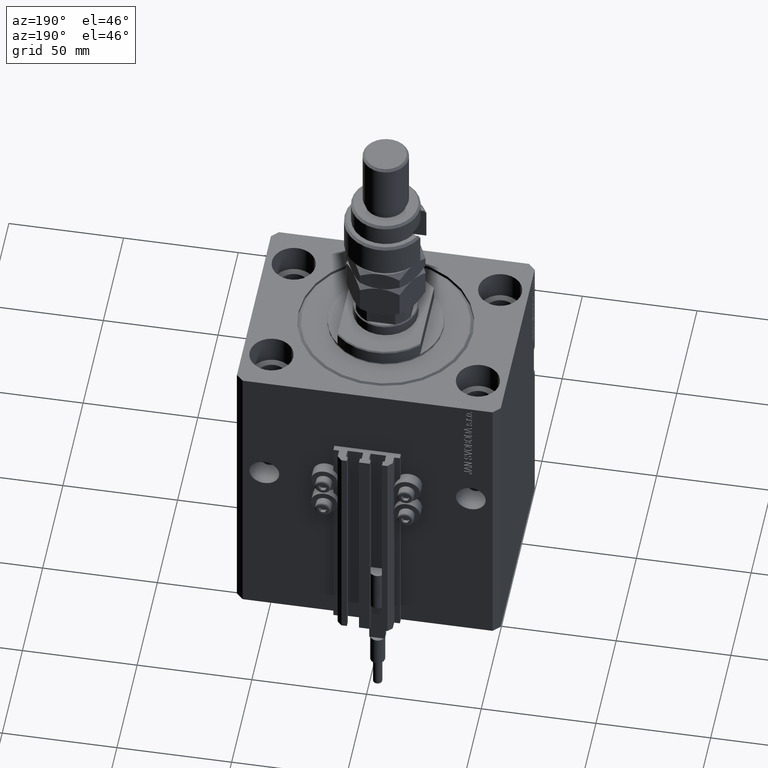
[diagram: clean part render]
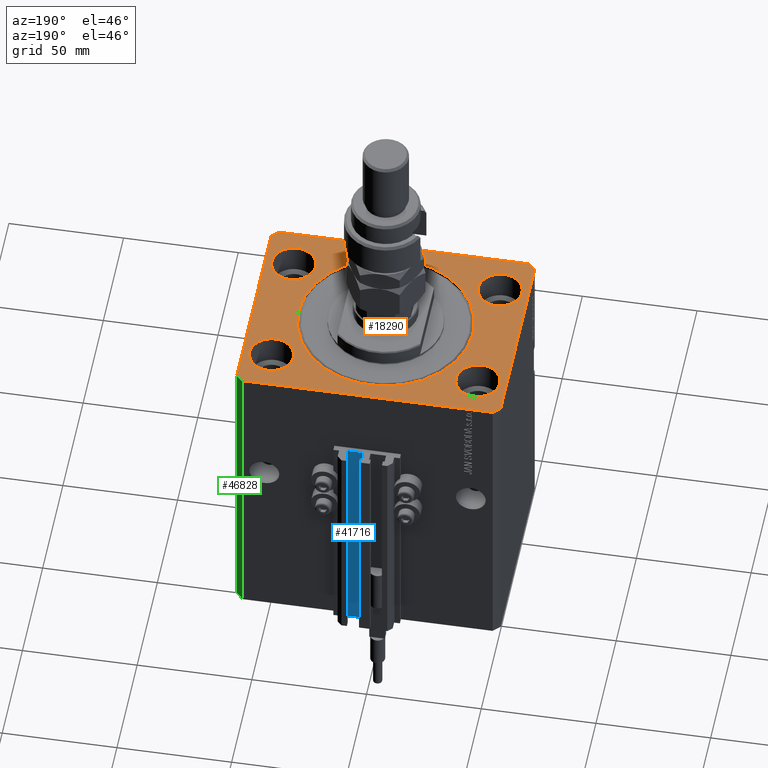
[diagram: same view with three faces highlighted in distinct colors, each labeled with its STEP entity id]
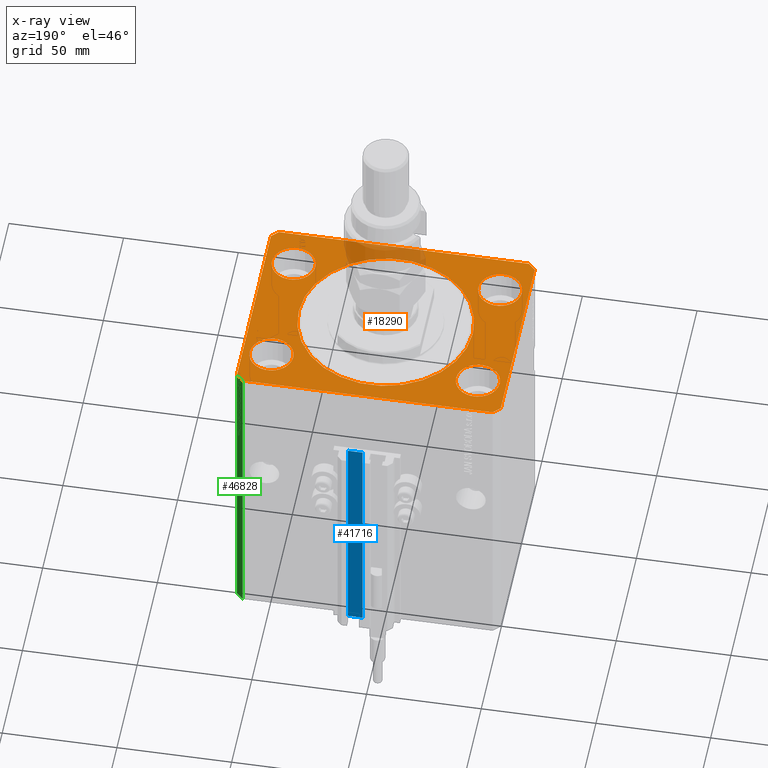
[diagram: x-ray of the same camera — body ghosted, the three highlighted faces saturated]
A machine part, auxiliary view with three faces highlighted in distinct colors.
The next image is the same camera in x-ray (body ghosted, the three faces saturated) — at least one of them is partly hidden behind the body in this view.
Their STEP definitions:

[orange] entity #18290 — the highlighted planar face has unit normal (0, 0, 1).
#83 = ORIENTED_EDGE ( 'NONE', *, *, #45579, .F. ) ;
#184 = EDGE_CURVE ( 'NONE', #30116, #21361, #6221, .T. ) ;
#811 = DIRECTION ( 'NONE',  ( 1.000000000000000000, 0.000000000000000000, 0.000000000000000000 ) ) ;
#1210 = CARTESIAN_POINT ( 'NONE',  ( -35.50000000000000000, 27.50000000000000355, 0.000000000000000000 ) ) ;
#1668 = LINE ( 'NONE', #33448, #16861 ) ;
#1735 = ORIENTED_EDGE ( 'NONE', *, *, #22554, .F. ) ;
#1888 = EDGE_LOOP ( 'NONE', ( #12918, #3303 ) ) ;
#2054 = VERTEX_POINT ( 'NONE', #19089 ) ;
#2514 = DIRECTION ( 'NONE',  ( -0.7071067811865376918, 0.7071067811865574537, 0.000000000000000000 ) ) ;
#2721 = CARTESIAN_POINT ( 'NONE',  ( 0.000000000000000000, 0.000000000000000000, 0.000000000000000000 ) ) ;
#2876 = VERTEX_POINT ( 'NONE', #50110 ) ;
#2987 = FACE_BOUND ( 'NONE', #1888, .T. ) ;
#3303 = ORIENTED_EDGE ( 'NONE', *, *, #25908, .F. ) ;
#3665 = AXIS2_PLACEMENT_3D ( 'NONE', #6005, #34600, #43303 ) ;
#3726 = EDGE_CURVE ( 'NONE', #45807, #2054, #19192, .T. ) ;
#4096 = DIRECTION ( 'NONE',  ( -2.478176394252581141E-16, -1.000000000000000000, 0.000000000000000000 ) ) ;
#4221 = CARTESIAN_POINT ( 'NONE',  ( -54.49999999999999289, 45.00000000000000000, 0.000000000000000000 ) ) ;
#4326 = VERTEX_POINT ( 'NONE', #37708 ) ;
#4799 = EDGE_CURVE ( 'NONE', #9020, #43027, #27580, .T. ) ;
#5177 = ORIENTED_EDGE ( 'NONE', *, *, #28275, .T. ) ;
#5676 = AXIS2_PLACEMENT_3D ( 'NONE', #47216, #43248, #26607 ) ;
#6005 = CARTESIAN_POINT ( 'NONE',  ( -45.00000000000000000, -27.49999999999999645, 0.000000000000000000 ) ) ;
#6221 = LINE ( 'NONE', #35065, #36826 ) ;
#6311 = EDGE_CURVE ( 'NONE', #49414, #2876, #35202, .T. ) ;
#6746 = CARTESIAN_POINT ( 'NONE',  ( -57.50000000000000711, -42.00000000000000711, 0.000000000000000000 ) ) ;
#6998 = ORIENTED_EDGE ( 'NONE', *, *, #43211, .T. ) ;
#7359 = EDGE_CURVE ( 'NONE', #22617, #24450, #21767, .T. ) ;
#7481 = DIRECTION ( 'NONE',  ( 0.000000000000000000, 0.000000000000000000, 1.000000000000000000 ) ) ;
#7608 = DIRECTION ( 'NONE',  ( 1.000000000000000000, 0.000000000000000000, 0.000000000000000000 ) ) ;
#7990 = CARTESIAN_POINT ( 'NONE',  ( -54.50000000000000000, -27.49999999999999645, 0.000000000000000000 ) ) ;
#8066 = CARTESIAN_POINT ( 'NONE',  ( -54.50000000000000711, -45.00000000000000000, 0.000000000000000000 ) ) ;
#8508 = DIRECTION ( 'NONE',  ( 0.000000000000000000, 0.000000000000000000, 1.000000000000000000 ) ) ;
#8703 = DIRECTION ( 'NONE',  ( 1.000000000000000000, 0.000000000000000000, 0.000000000000000000 ) ) ;
#8999 = CARTESIAN_POINT ( 'NONE',  ( 54.50000000000000711, -44.99999999999998579, 0.000000000000000000 ) ) ;
#9020 = VERTEX_POINT ( 'NONE', #25594 ) ;
#9616 = VECTOR ( 'NONE', #4096, 1000.000000000000000 ) ;
#10282 = ORIENTED_EDGE ( 'NONE', *, *, #19243, .T. ) ;
#10365 = AXIS2_PLACEMENT_3D ( 'NONE', #33771, #12867, #29027 ) ;
#10877 = CARTESIAN_POINT ( 'NONE',  ( -57.50000000000000711, -42.00000000000000711, 0.000000000000000000 ) ) ;
#11182 = FACE_BOUND ( 'NONE', #42138, .T. ) ;
#11315 = CARTESIAN_POINT ( 'NONE',  ( -45.00000000000000000, -27.49999999999999645, 0.000000000000000000 ) ) ;
#11336 = CARTESIAN_POINT ( 'NONE',  ( -54.50000000000000711, -45.00000000000000000, 0.000000000000000000 ) ) ;
#11446 = FACE_BOUND ( 'NONE', #13579, .T. ) ;
#11555 = ORIENTED_EDGE ( 'NONE', *, *, #22579, .T. ) ;
#12607 = ORIENTED_EDGE ( 'NONE', *, *, #37697, .T. ) ;
#12795 = AXIS2_PLACEMENT_3D ( 'NONE', #38583, #8508, #17959 ) ;
#12867 = DIRECTION ( 'NONE',  ( 0.000000000000000000, 0.000000000000000000, 1.000000000000000000 ) ) ;
#12918 = ORIENTED_EDGE ( 'NONE', *, *, #6311, .F. ) ;
#12930 = VERTEX_POINT ( 'NONE', #45316 ) ;
#13325 = AXIS2_PLACEMENT_3D ( 'NONE', #51375, #27061, #26536 ) ;
#13579 = EDGE_LOOP ( 'NONE', ( #83, #25432 ) ) ;
#14397 = CARTESIAN_POINT ( 'NONE',  ( 57.50000000000000711, -41.99999999999998579, 0.000000000000000000 ) ) ;
#14648 = CIRCLE ( 'NONE', #3665, 9.500000000000001776 ) ;
#15611 = CARTESIAN_POINT ( 'NONE',  ( -38.00000000000000000, 4.653657836759941941E-15, 0.000000000000000000 ) ) ;
#16283 = LINE ( 'NONE', #8066, #45289 ) ;
#16861 = VECTOR ( 'NONE', #33706, 1000.000000000000000 ) ;
#17304 = LINE ( 'NONE', #33450, #9616 ) ;
#17445 = CIRCLE ( 'NONE', #30090, 9.500000000000001776 ) ;
#17941 = AXIS2_PLACEMENT_3D ( 'NONE', #11315, #39104, #7608 ) ;
#17959 = DIRECTION ( 'NONE',  ( 1.000000000000000000, 0.000000000000000000, 0.000000000000000000 ) ) ;
#18282 = AXIS2_PLACEMENT_3D ( 'NONE', #49438, #41772, #8703 ) ;
#18290 = ADVANCED_FACE ( 'NONE', ( #11182, #40025, #43735, #2987, #11446, #19674 ), #35282, .T. ) ;
#19089 = CARTESIAN_POINT ( 'NONE',  ( 35.50000000000000000, -27.49999999999999645, 0.000000000000000000 ) ) ;
#19192 = CIRCLE ( 'NONE', #37758, 9.500000000000001776 ) ;
#19243 = EDGE_CURVE ( 'NONE', #47032, #30116, #40542, .T. ) ;
#19674 = FACE_OUTER_BOUND ( 'NONE', #39605, .T. ) ;
#20768 = VERTEX_POINT ( 'NONE', #11336 ) ;
#20851 = DIRECTION ( 'NONE',  ( -1.000000000000000000, -2.546383084002639322E-16, 0.000000000000000000 ) ) ;
#21361 = VERTEX_POINT ( 'NONE', #35504 ) ;
#21767 = CIRCLE ( 'NONE', #5676, 38.00000000000000000 ) ;
#22554 = EDGE_CURVE ( 'NONE', #2054, #45807, #50236, .T. ) ;
#22579 = EDGE_CURVE ( 'NONE', #42062, #12930, #40461, .T. ) ;
#22617 = VERTEX_POINT ( 'NONE', #15611 ) ;
#24288 = ORIENTED_EDGE ( 'NONE', *, *, #48935, .F. ) ;
#24450 = VERTEX_POINT ( 'NONE', #48822 ) ;
#24759 = DIRECTION ( 'NONE',  ( 1.000000000000000000, 1.273191542001326317E-16, 0.000000000000000000 ) ) ;
#25432 = ORIENTED_EDGE ( 'NONE', *, *, #7359, .F. ) ;
#25555 = VECTOR ( 'NONE', #20851, 1000.000000000000000 ) ;
#25594 = CARTESIAN_POINT ( 'NONE',  ( 35.50000000000000000, 27.50000000000001776, 0.000000000000000000 ) ) ;
#25908 = EDGE_CURVE ( 'NONE', #2876, #49414, #17445, .T. ) ;
#26048 = ORIENTED_EDGE ( 'NONE', *, *, #3726, .F. ) ;
#26427 = CARTESIAN_POINT ( 'NONE',  ( -54.49999999999999289, 45.00000000000000000, 0.000000000000000000 ) ) ;
#26441 = AXIS2_PLACEMENT_3D ( 'NONE', #2721, #7481, #43992 ) ;
#26536 = DIRECTION ( 'NONE',  ( 1.000000000000000000, 0.000000000000000000, 0.000000000000000000 ) ) ;
#26607 = DIRECTION ( 'NONE',  ( 1.000000000000000000, 0.000000000000000000, 0.000000000000000000 ) ) ;
#27061 = DIRECTION ( 'NONE',  ( 0.000000000000000000, 0.000000000000000000, 1.000000000000000000 ) ) ;
#27580 = CIRCLE ( 'NONE', #13325, 9.500000000000001776 ) ;
#28275 = EDGE_CURVE ( 'NONE', #20768, #35128, #16283, .T. ) ;
#28424 = CARTESIAN_POINT ( 'NONE',  ( 45.00000000000000000, -27.49999999999999645, 0.000000000000000000 ) ) ;
#28785 = LINE ( 'NONE', #44378, #25555 ) ;
#29027 = DIRECTION ( 'NONE',  ( 1.000000000000000000, 0.000000000000000000, 0.000000000000000000 ) ) ;
#30090 = AXIS2_PLACEMENT_3D ( 'NONE', #33100, #48186, #811 ) ;
#30116 = VERTEX_POINT ( 'NONE', #50685 ) ;
#30498 = ORIENTED_EDGE ( 'NONE', *, *, #184, .T. ) ;
#30916 = EDGE_LOOP ( 'NONE', ( #33778, #33886 ) ) ;
#32122 = VERTEX_POINT ( 'NONE', #7990 ) ;
#32416 = CARTESIAN_POINT ( 'NONE',  ( 54.50000000000000000, -27.49999999999999645, 0.000000000000000000 ) ) ;
#32442 = ORIENTED_EDGE ( 'NONE', *, *, #50537, .T. ) ;
#33100 = CARTESIAN_POINT ( 'NONE',  ( -45.00000000000000000, 27.50000000000000355, 0.000000000000000000 ) ) ;
#33209 = CIRCLE ( 'NONE', #10365, 38.00000000000000000 ) ;
#33407 = CARTESIAN_POINT ( 'NONE',  ( 57.50000000000000711, -41.99999999999998579, 0.000000000000000000 ) ) ;
#33448 = CARTESIAN_POINT ( 'NONE',  ( 54.50000000000000711, -44.99999999999998579, 0.000000000000000000 ) ) ;
#33450 = CARTESIAN_POINT ( 'NONE',  ( -57.49999999999998579, 42.00000000000000711, 0.000000000000000000 ) ) ;
#33706 = DIRECTION ( 'NONE',  ( 0.7071067811865483499, 0.7071067811865466846, 0.000000000000000000 ) ) ;
#33771 = CARTESIAN_POINT ( 'NONE',  ( 0.000000000000000000, 0.000000000000000000, 0.000000000000000000 ) ) ;
#33778 = ORIENTED_EDGE ( 'NONE', *, *, #42960, .F. ) ;
#33886 = ORIENTED_EDGE ( 'NONE', *, *, #4799, .F. ) ;
#34272 = VERTEX_POINT ( 'NONE', #6746 ) ;
#34600 = DIRECTION ( 'NONE',  ( 0.000000000000000000, 0.000000000000000000, 1.000000000000000000 ) ) ;
#34981 = VECTOR ( 'NONE', #38671, 1000.000000000000114 ) ;
#35065 = CARTESIAN_POINT ( 'NONE',  ( 57.50000000000055422, 41.99999999999997868, 0.000000000000000000 ) ) ;
#35128 = VERTEX_POINT ( 'NONE', #8999 ) ;
#35202 = CIRCLE ( 'NONE', #18282, 9.500000000000001776 ) ;
#35282 = PLANE ( 'NONE',  #26441 ) ;
#35504 = CARTESIAN_POINT ( 'NONE',  ( 54.50000000000058975, 45.00000000000002842, 0.000000000000000000 ) ) ;
#35989 = DIRECTION ( 'NONE',  ( -0.7071067811865483499, -0.7071067811865466846, 0.000000000000000000 ) ) ;
#36350 = DIRECTION ( 'NONE',  ( 1.000000000000000000, 0.000000000000000000, 0.000000000000000000 ) ) ;
#36826 = VECTOR ( 'NONE', #2514, 999.9999999999998863 ) ;
#37697 = EDGE_CURVE ( 'NONE', #35128, #47032, #1668, .T. ) ;
#37708 = CARTESIAN_POINT ( 'NONE',  ( -35.50000000000000000, -27.49999999999999645, 0.000000000000000000 ) ) ;
#37758 = AXIS2_PLACEMENT_3D ( 'NONE', #28424, #48765, #36350 ) ;
#38277 = VECTOR ( 'NONE', #49517, 1000.000000000000000 ) ;
#38583 = CARTESIAN_POINT ( 'NONE',  ( 45.00000000000000000, 27.50000000000001776, 0.000000000000000000 ) ) ;
#38671 = DIRECTION ( 'NONE',  ( 0.7071067811865491270, -0.7071067811865459074, 0.000000000000000000 ) ) ;
#39104 = DIRECTION ( 'NONE',  ( 0.000000000000000000, 0.000000000000000000, 1.000000000000000000 ) ) ;
#39152 = CARTESIAN_POINT ( 'NONE',  ( 45.00000000000000000, -27.49999999999999645, 0.000000000000000000 ) ) ;
#39188 = LINE ( 'NONE', #10877, #34981 ) ;
#39257 = VECTOR ( 'NONE', #35989, 1000.000000000000000 ) ;
#39605 = EDGE_LOOP ( 'NONE', ( #6998, #11555, #32442, #47146, #5177, #12607, #10282, #30498 ) ) ;
#40025 = FACE_BOUND ( 'NONE', #47636, .T. ) ;
#40461 = LINE ( 'NONE', #4221, #39257 ) ;
#40542 = LINE ( 'NONE', #33407, #38277 ) ;
#40956 = AXIS2_PLACEMENT_3D ( 'NONE', #39152, #47875, #52106 ) ;
#41772 = DIRECTION ( 'NONE',  ( 0.000000000000000000, 0.000000000000000000, 1.000000000000000000 ) ) ;
#42062 = VERTEX_POINT ( 'NONE', #26427 ) ;
#42138 = EDGE_LOOP ( 'NONE', ( #24288, #50636 ) ) ;
#42960 = EDGE_CURVE ( 'NONE', #43027, #9020, #51653, .T. ) ;
#43027 = VERTEX_POINT ( 'NONE', #51526 ) ;
#43126 = EDGE_CURVE ( 'NONE', #32122, #4326, #49168, .T. ) ;
#43211 = EDGE_CURVE ( 'NONE', #21361, #42062, #28785, .T. ) ;
#43248 = DIRECTION ( 'NONE',  ( 0.000000000000000000, 0.000000000000000000, 1.000000000000000000 ) ) ;
#43303 = DIRECTION ( 'NONE',  ( 1.000000000000000000, 0.000000000000000000, 0.000000000000000000 ) ) ;
#43735 = FACE_BOUND ( 'NONE', #30916, .T. ) ;
#43992 = DIRECTION ( 'NONE',  ( 1.000000000000000000, 0.000000000000000000, -0.000000000000000000 ) ) ;
#44378 = CARTESIAN_POINT ( 'NONE',  ( 54.50000000000058975, 45.00000000000002842, 0.000000000000000000 ) ) ;
#45289 = VECTOR ( 'NONE', #24759, 1000.000000000000000 ) ;
#45316 = CARTESIAN_POINT ( 'NONE',  ( -57.49999999999998579, 42.00000000000000711, 0.000000000000000000 ) ) ;
#45579 = EDGE_CURVE ( 'NONE', #24450, #22617, #33209, .T. ) ;
#45807 = VERTEX_POINT ( 'NONE', #32416 ) ;
#47032 = VERTEX_POINT ( 'NONE', #14397 ) ;
#47146 = ORIENTED_EDGE ( 'NONE', *, *, #47205, .T. ) ;
#47205 = EDGE_CURVE ( 'NONE', #34272, #20768, #39188, .T. ) ;
#47216 = CARTESIAN_POINT ( 'NONE',  ( 0.000000000000000000, 0.000000000000000000, 0.000000000000000000 ) ) ;
#47636 = EDGE_LOOP ( 'NONE', ( #26048, #1735 ) ) ;
#47875 = DIRECTION ( 'NONE',  ( 0.000000000000000000, 0.000000000000000000, 1.000000000000000000 ) ) ;
#48186 = DIRECTION ( 'NONE',  ( 0.000000000000000000, 0.000000000000000000, 1.000000000000000000 ) ) ;
#48765 = DIRECTION ( 'NONE',  ( 0.000000000000000000, 0.000000000000000000, 1.000000000000000000 ) ) ;
#48822 = CARTESIAN_POINT ( 'NONE',  ( 38.00000000000000000, 0.000000000000000000, 0.000000000000000000 ) ) ;
#48935 = EDGE_CURVE ( 'NONE', #4326, #32122, #14648, .T. ) ;
#49168 = CIRCLE ( 'NONE', #17941, 9.500000000000001776 ) ;
#49414 = VERTEX_POINT ( 'NONE', #1210 ) ;
#49438 = CARTESIAN_POINT ( 'NONE',  ( -45.00000000000000000, 27.50000000000000355, 0.000000000000000000 ) ) ;
#49517 = DIRECTION ( 'NONE',  ( 6.443258625056715108E-15, 1.000000000000000000, 0.000000000000000000 ) ) ;
#50110 = CARTESIAN_POINT ( 'NONE',  ( -54.50000000000000000, 27.50000000000000355, 0.000000000000000000 ) ) ;
#50236 = CIRCLE ( 'NONE', #40956, 9.500000000000001776 ) ;
#50537 = EDGE_CURVE ( 'NONE', #12930, #34272, #17304, .T. ) ;
#50636 = ORIENTED_EDGE ( 'NONE', *, *, #43126, .F. ) ;
#50685 = CARTESIAN_POINT ( 'NONE',  ( 57.50000000000055422, 41.99999999999997868, 0.000000000000000000 ) ) ;
#51375 = CARTESIAN_POINT ( 'NONE',  ( 45.00000000000000000, 27.50000000000001776, 0.000000000000000000 ) ) ;
#51526 = CARTESIAN_POINT ( 'NONE',  ( 54.50000000000000000, 27.50000000000001776, 0.000000000000000000 ) ) ;
#51653 = CIRCLE ( 'NONE', #12795, 9.500000000000001776 ) ;
#52106 = DIRECTION ( 'NONE',  ( 1.000000000000000000, 0.000000000000000000, 0.000000000000000000 ) ) ;

[blue] entity #41716 — the highlighted planar face has unit normal (0, 1, 0).
#3518 = VECTOR ( 'NONE', #41183, 1000.000000000000000 ) ;
#6398 = CARTESIAN_POINT ( 'NONE',  ( 1.800000000000000933, 46.99999999999998579, -135.0000000000000000 ) ) ;
#8093 = VECTOR ( 'NONE', #49141, 1000.000000000000000 ) ;
#12996 = PLANE ( 'NONE',  #48266 ) ;
#13911 = CARTESIAN_POINT ( 'NONE',  ( 8.199999999999999289, 46.99999999999998579, -135.0000000000000000 ) ) ;
#14675 = VECTOR ( 'NONE', #45489, 1000.000000000000000 ) ;
#15531 = ORIENTED_EDGE ( 'NONE', *, *, #42458, .F. ) ;
#16455 = FACE_OUTER_BOUND ( 'NONE', #49009, .T. ) ;
#19641 = EDGE_CURVE ( 'NONE', #50516, #29616, #42565, .T. ) ;
#20704 = DIRECTION ( 'NONE',  ( 0.000000000000000000, 1.000000000000000000, -0.000000000000000000 ) ) ;
#21334 = DIRECTION ( 'NONE',  ( 0.000000000000000000, 0.000000000000000000, 1.000000000000000000 ) ) ;
#21356 = LINE ( 'NONE', #13911, #3518 ) ;
#21965 = CARTESIAN_POINT ( 'NONE',  ( 8.199999999999999289, 46.99999999999998579, -135.0000000000000000 ) ) ;
#23885 = CARTESIAN_POINT ( 'NONE',  ( 1.800000000000000933, 46.99999999999998579, -33.00000000000000000 ) ) ;
#24888 = EDGE_CURVE ( 'NONE', #40696, #36249, #26523, .T. ) ;
#26052 = VECTOR ( 'NONE', #21334, 1000.000000000000000 ) ;
#26523 = LINE ( 'NONE', #47649, #8093 ) ;
#27604 = ORIENTED_EDGE ( 'NONE', *, *, #24888, .F. ) ;
#28643 = DIRECTION ( 'NONE',  ( 0.000000000000000000, 0.000000000000000000, 1.000000000000000000 ) ) ;
#29616 = VERTEX_POINT ( 'NONE', #36520 ) ;
#32256 = EDGE_CURVE ( 'NONE', #29616, #36249, #38945, .T. ) ;
#32676 = CARTESIAN_POINT ( 'NONE',  ( 8.199999999999999289, 46.99999999999998579, -135.0000000000000000 ) ) ;
#36249 = VERTEX_POINT ( 'NONE', #23885 ) ;
#36520 = CARTESIAN_POINT ( 'NONE',  ( 1.800000000000000933, 46.99999999999998579, -135.0000000000000000 ) ) ;
#36563 = CARTESIAN_POINT ( 'NONE',  ( 8.199999999999999289, 46.99999999999998579, -135.0000000000000000 ) ) ;
#38945 = LINE ( 'NONE', #6398, #26052 ) ;
#39809 = ORIENTED_EDGE ( 'NONE', *, *, #32256, .T. ) ;
#40696 = VERTEX_POINT ( 'NONE', #44990 ) ;
#41183 = DIRECTION ( 'NONE',  ( 0.000000000000000000, 0.000000000000000000, 1.000000000000000000 ) ) ;
#41716 = ADVANCED_FACE ( 'NONE', ( #16455 ), #12996, .T. ) ;
#42458 = EDGE_CURVE ( 'NONE', #50516, #40696, #21356, .T. ) ;
#42565 = LINE ( 'NONE', #21965, #14675 ) ;
#44857 = ORIENTED_EDGE ( 'NONE', *, *, #19641, .T. ) ;
#44990 = CARTESIAN_POINT ( 'NONE',  ( 8.199999999999999289, 46.99999999999998579, -33.00000000000000000 ) ) ;
#45489 = DIRECTION ( 'NONE',  ( -1.000000000000000000, 0.000000000000000000, 0.000000000000000000 ) ) ;
#47649 = CARTESIAN_POINT ( 'NONE',  ( 8.199999999999999289, 46.99999999999998579, -33.00000000000000000 ) ) ;
#48266 = AXIS2_PLACEMENT_3D ( 'NONE', #36563, #20704, #28643 ) ;
#49009 = EDGE_LOOP ( 'NONE', ( #27604, #15531, #44857, #39809 ) ) ;
#49141 = DIRECTION ( 'NONE',  ( -1.000000000000000000, 0.000000000000000000, 0.000000000000000000 ) ) ;
#50516 = VERTEX_POINT ( 'NONE', #32676 ) ;

[green] entity #46828 — the highlighted planar face has unit normal (0.7071, 0.7071, 0).
#184 = EDGE_CURVE ( 'NONE', #30116, #21361, #6221, .T. ) ;
#534 = CARTESIAN_POINT ( 'NONE',  ( 57.50000000000055422, 41.99999999999997868, -135.0000000000000000 ) ) ;
#2514 = DIRECTION ( 'NONE',  ( -0.7071067811865376918, 0.7071067811865574537, 0.000000000000000000 ) ) ;
#5762 = ORIENTED_EDGE ( 'NONE', *, *, #47841, .T. ) ;
#5925 = DIRECTION ( 'NONE',  ( 0.7071067811865573427, 0.7071067811865378028, -0.000000000000000000 ) ) ;
#6221 = LINE ( 'NONE', #35065, #36826 ) ;
#9408 = ORIENTED_EDGE ( 'NONE', *, *, #184, .F. ) ;
#9893 = DIRECTION ( 'NONE',  ( -0.7071067811865378028, 0.7071067811865573427, 0.000000000000000000 ) ) ;
#10306 = EDGE_LOOP ( 'NONE', ( #9408, #43802, #5762, #12891 ) ) ;
#11067 = VERTEX_POINT ( 'NONE', #12447 ) ;
#11954 = LINE ( 'NONE', #40007, #30517 ) ;
#12447 = CARTESIAN_POINT ( 'NONE',  ( 57.50000000000055422, 41.99999999999997868, -135.0000000000000000 ) ) ;
#12891 = ORIENTED_EDGE ( 'NONE', *, *, #36981, .T. ) ;
#15037 = VERTEX_POINT ( 'NONE', #25989 ) ;
#16107 = DIRECTION ( 'NONE',  ( -0.7071067811865376918, 0.7071067811865574537, 0.000000000000000000 ) ) ;
#16685 = DIRECTION ( 'NONE',  ( 0.000000000000000000, 0.000000000000000000, 1.000000000000000000 ) ) ;
#20099 = LINE ( 'NONE', #52341, #36565 ) ;
#21361 = VERTEX_POINT ( 'NONE', #35504 ) ;
#23370 = DIRECTION ( 'NONE',  ( 0.000000000000000000, 0.000000000000000000, 1.000000000000000000 ) ) ;
#25989 = CARTESIAN_POINT ( 'NONE',  ( 54.50000000000058975, 45.00000000000002842, -135.0000000000000000 ) ) ;
#27693 = VECTOR ( 'NONE', #16685, 1000.000000000000000 ) ;
#30116 = VERTEX_POINT ( 'NONE', #50685 ) ;
#30517 = VECTOR ( 'NONE', #23370, 1000.000000000000000 ) ;
#31804 = EDGE_CURVE ( 'NONE', #11067, #30116, #36790, .T. ) ;
#35065 = CARTESIAN_POINT ( 'NONE',  ( 57.50000000000055422, 41.99999999999997868, 0.000000000000000000 ) ) ;
#35504 = CARTESIAN_POINT ( 'NONE',  ( 54.50000000000058975, 45.00000000000002842, 0.000000000000000000 ) ) ;
#36565 = VECTOR ( 'NONE', #16107, 999.9999999999998863 ) ;
#36790 = LINE ( 'NONE', #534, #27693 ) ;
#36826 = VECTOR ( 'NONE', #2514, 999.9999999999998863 ) ;
#36981 = EDGE_CURVE ( 'NONE', #15037, #21361, #11954, .T. ) ;
#37468 = AXIS2_PLACEMENT_3D ( 'NONE', #45366, #5925, #9893 ) ;
#40007 = CARTESIAN_POINT ( 'NONE',  ( 54.50000000000058975, 45.00000000000002842, -135.0000000000000000 ) ) ;
#42180 = PLANE ( 'NONE',  #37468 ) ;
#43802 = ORIENTED_EDGE ( 'NONE', *, *, #31804, .F. ) ;
#45366 = CARTESIAN_POINT ( 'NONE',  ( 57.50000000000055422, 41.99999999999997868, -135.0000000000000000 ) ) ;
#46399 = FACE_OUTER_BOUND ( 'NONE', #10306, .T. ) ;
#46828 = ADVANCED_FACE ( 'NONE', ( #46399 ), #42180, .T. ) ;
#47841 = EDGE_CURVE ( 'NONE', #11067, #15037, #20099, .T. ) ;
#50685 = CARTESIAN_POINT ( 'NONE',  ( 57.50000000000055422, 41.99999999999997868, 0.000000000000000000 ) ) ;
#52341 = CARTESIAN_POINT ( 'NONE',  ( 57.50000000000055422, 41.99999999999997868, -135.0000000000000000 ) ) ;